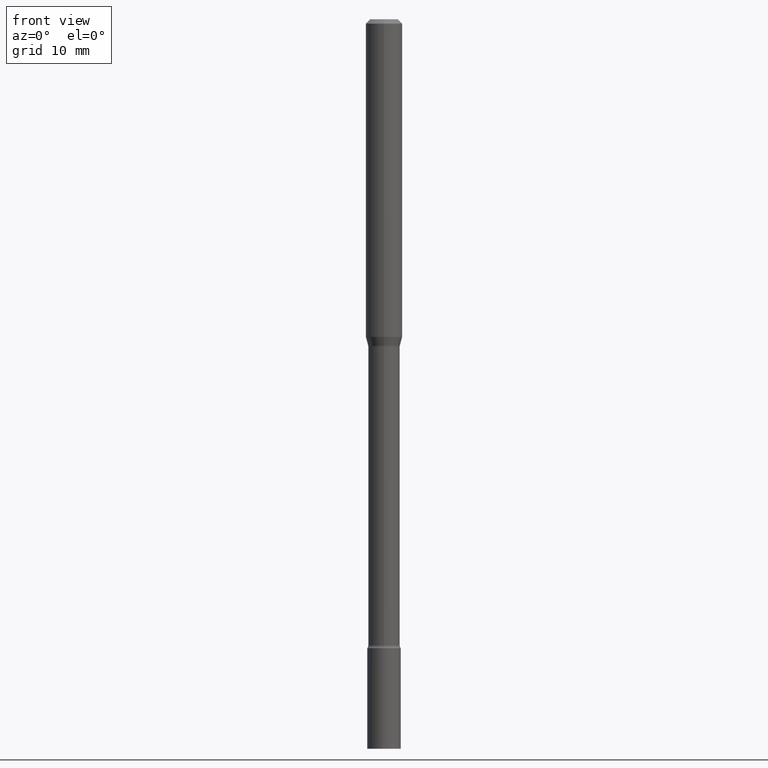
[diagram: clean part render]
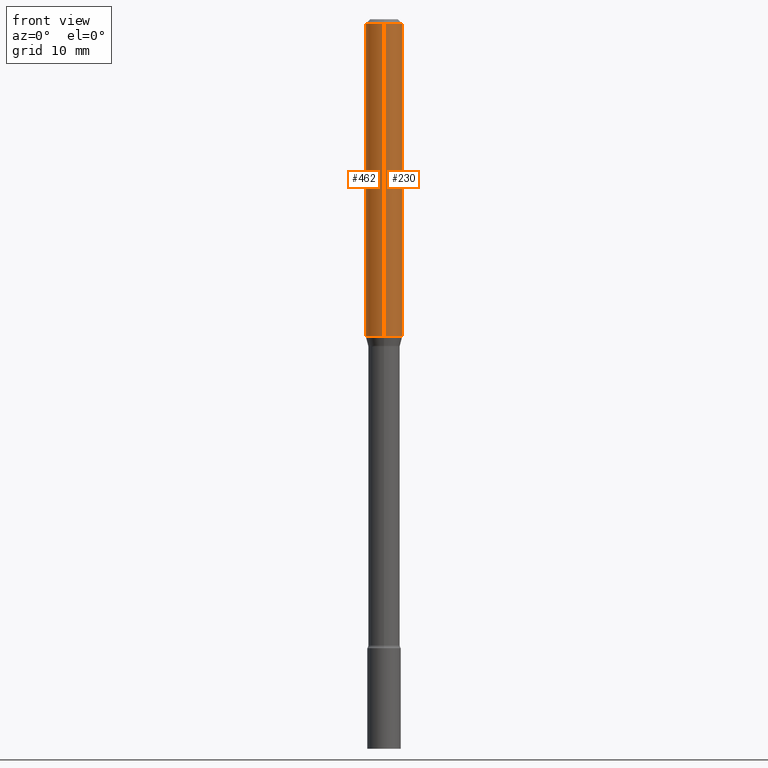
[diagram: same view with one multi-face feature highlighted, each face labeled with its STEP entity id]
A machine part, front view. The highlighted faces form ONE feature: a constant-radius fillet chain: 2 tangent blend faces with common blend radius 1.5875 mm. The faces share edges in the B-rep.
Their STEP definitions:
[1] entity #230 (Cylinder):
#4 = ORIENTED_EDGE ( 'NONE', *, *, #278, .F. ) ;
#22 = CARTESIAN_POINT ( 'NONE',  ( 4.440892098500625669E-16, 0.06250000000000000000, -2.182204508163460437E-16 ) ) ;
#43 = VECTOR ( 'NONE', #266, 39.37007874015748143 ) ;
#51 = VECTOR ( 'NONE', #198, 39.37007874015748143 ) ;
#66 = AXIS2_PLACEMENT_3D ( 'NONE', #467, #179, #302 ) ;
#67 = CARTESIAN_POINT ( 'NONE',  ( -4.364351673553912750E-16, -0.06250000000000005551, -0.01499999999999981209 ) ) ;
#77 = VERTEX_POINT ( 'NONE', #67 ) ;
#87 = CARTESIAN_POINT ( 'NONE',  ( 3.668155158584478023E-31, -5.237290819592315723E-17, -0.01500000000000003067 ) ) ;
#119 = CARTESIAN_POINT ( 'NONE',  ( 4.440892098500893388E-16, 0.06249999999999993755, -0.01500000000000024751 ) ) ;
#124 = DIRECTION ( 'NONE',  ( -6.982962677686265922E-15, -1.000000000000000000, 3.483106191921935554E-15 ) ) ;
#128 = EDGE_CURVE ( 'NONE', #399, #427, #134, .T. ) ;
#132 = CYLINDRICAL_SURFACE ( 'NONE', #66, 0.06250000000000000000 ) ;
#134 = LINE ( 'NONE', #22, #43 ) ;
#144 = AXIS2_PLACEMENT_3D ( 'NONE', #157, #358, #488 ) ;
#157 = CARTESIAN_POINT ( 'NONE',  ( 2.661770308399798169E-29, -3.800402272357863014E-15, -1.088464170676043397 ) ) ;
#173 = EDGE_CURVE ( 'NONE', #77, #427, #187, .T. ) ;
#179 = DIRECTION ( 'NONE',  ( -2.445436772389647239E-29, 3.491527213061536699E-15, 1.000000000000000000 ) ) ;
#187 = CIRCLE ( 'NONE', #458, 0.06250000000000000000 ) ;
#198 = DIRECTION ( 'NONE',  ( -2.445436772389647239E-29, 3.491527213061536699E-15, 1.000000000000000000 ) ) ;
#229 = CARTESIAN_POINT ( 'NONE',  ( 4.440892098500890430E-16, 0.06249999999999618361, -1.088464170676043841 ) ) ;
#230 = ADVANCED_FACE ( 'NONE', ( #508 ), #132, .T. ) ;
#244 = DIRECTION ( 'NONE',  ( -2.445436772389647239E-29, 3.491527213061536699E-15, 1.000000000000000000 ) ) ;
#266 = DIRECTION ( 'NONE',  ( -2.445436772389647239E-29, 3.491527213061536699E-15, 1.000000000000000000 ) ) ;
#278 = EDGE_CURVE ( 'NONE', #320, #77, #495, .T. ) ;
#287 = EDGE_LOOP ( 'NONE', ( #464, #316, #365, #4 ) ) ;
#302 = DIRECTION ( 'NONE',  ( -6.982962677686265922E-15, -1.000000000000000000, 3.491527213061536699E-15 ) ) ;
#316 = ORIENTED_EDGE ( 'NONE', *, *, #128, .T. ) ;
#320 = VERTEX_POINT ( 'NONE', #514 ) ;
#347 = EDGE_CURVE ( 'NONE', #320, #399, #373, .T. ) ;
#358 = DIRECTION ( 'NONE',  ( -2.445436772389647239E-29, 3.491527213061536699E-15, 1.000000000000000000 ) ) ;
#365 = ORIENTED_EDGE ( 'NONE', *, *, #173, .F. ) ;
#367 = CARTESIAN_POINT ( 'NONE',  ( -4.364351673553916201E-16, -0.06250000000000000000, 2.182204508163460437E-16 ) ) ;
#373 = CIRCLE ( 'NONE', #144, 0.06250000000000000000 ) ;
#399 = VERTEX_POINT ( 'NONE', #229 ) ;
#427 = VERTEX_POINT ( 'NONE', #119 ) ;
#458 = AXIS2_PLACEMENT_3D ( 'NONE', #87, #244, #124 ) ;
#464 = ORIENTED_EDGE ( 'NONE', *, *, #347, .T. ) ;
#467 = CARTESIAN_POINT ( 'NONE',  ( 0.000000000000000000, 0.000000000000000000, 0.000000000000000000 ) ) ;
#488 = DIRECTION ( 'NONE',  ( -6.982962677686265922E-15, -1.000000000000000000, 4.370956789862821150E-15 ) ) ;
#495 = LINE ( 'NONE', #367, #51 ) ;
#508 = FACE_OUTER_BOUND ( 'NONE', #287, .T. ) ;
#514 = CARTESIAN_POINT ( 'NONE',  ( -4.364351673553650454E-16, -0.06250000000000381639, -1.088464170676043175 ) ) ;
[2] entity #462 (Cylinder):
#8 = DIRECTION ( 'NONE',  ( -2.445436772389647239E-29, 3.491527213061536699E-15, 1.000000000000000000 ) ) ;
#22 = CARTESIAN_POINT ( 'NONE',  ( 4.440892098500625669E-16, 0.06250000000000000000, -2.182204508163460437E-16 ) ) ;
#32 = CIRCLE ( 'NONE', #465, 0.06250000000000000000 ) ;
#43 = VECTOR ( 'NONE', #266, 39.37007874015748143 ) ;
#51 = VECTOR ( 'NONE', #198, 39.37007874015748143 ) ;
#57 = CYLINDRICAL_SURFACE ( 'NONE', #234, 0.06250000000000000000 ) ;
#67 = CARTESIAN_POINT ( 'NONE',  ( -4.364351673553912750E-16, -0.06250000000000005551, -0.01499999999999981209 ) ) ;
#75 = EDGE_CURVE ( 'NONE', #427, #77, #281, .T. ) ;
#77 = VERTEX_POINT ( 'NONE', #67 ) ;
#104 = DIRECTION ( 'NONE',  ( -6.982962677686265922E-15, -1.000000000000000000, 3.491527213061536699E-15 ) ) ;
#119 = CARTESIAN_POINT ( 'NONE',  ( 4.440892098500893388E-16, 0.06249999999999993755, -0.01500000000000024751 ) ) ;
#128 = EDGE_CURVE ( 'NONE', #399, #427, #134, .T. ) ;
#134 = LINE ( 'NONE', #22, #43 ) ;
#176 = DIRECTION ( 'NONE',  ( -2.445436772389647239E-29, 3.491527213061536699E-15, 1.000000000000000000 ) ) ;
#198 = DIRECTION ( 'NONE',  ( -2.445436772389647239E-29, 3.491527213061536699E-15, 1.000000000000000000 ) ) ;
#204 = ORIENTED_EDGE ( 'NONE', *, *, #75, .F. ) ;
#228 = AXIS2_PLACEMENT_3D ( 'NONE', #271, #273, #431 ) ;
#229 = CARTESIAN_POINT ( 'NONE',  ( 4.440892098500890430E-16, 0.06249999999999618361, -1.088464170676043841 ) ) ;
#234 = AXIS2_PLACEMENT_3D ( 'NONE', #335, #176, #104 ) ;
#238 = CARTESIAN_POINT ( 'NONE',  ( 2.661770308399798169E-29, -3.800402272357863014E-15, -1.088464170676043397 ) ) ;
#253 = DIRECTION ( 'NONE',  ( -6.982962677686265922E-15, -1.000000000000000000, 4.370956789862821150E-15 ) ) ;
#266 = DIRECTION ( 'NONE',  ( -2.445436772389647239E-29, 3.491527213061536699E-15, 1.000000000000000000 ) ) ;
#271 = CARTESIAN_POINT ( 'NONE',  ( 3.668155158584478023E-31, -5.237290819592315723E-17, -0.01500000000000003067 ) ) ;
#273 = DIRECTION ( 'NONE',  ( -2.445436772389647239E-29, 3.491527213061536699E-15, 1.000000000000000000 ) ) ;
#278 = EDGE_CURVE ( 'NONE', #320, #77, #495, .T. ) ;
#281 = CIRCLE ( 'NONE', #228, 0.06250000000000000000 ) ;
#312 = EDGE_LOOP ( 'NONE', ( #396, #337, #361, #204 ) ) ;
#320 = VERTEX_POINT ( 'NONE', #514 ) ;
#335 = CARTESIAN_POINT ( 'NONE',  ( 0.000000000000000000, 0.000000000000000000, 0.000000000000000000 ) ) ;
#337 = ORIENTED_EDGE ( 'NONE', *, *, #480, .T. ) ;
#361 = ORIENTED_EDGE ( 'NONE', *, *, #278, .T. ) ;
#367 = CARTESIAN_POINT ( 'NONE',  ( -4.364351673553916201E-16, -0.06250000000000000000, 2.182204508163460437E-16 ) ) ;
#396 = ORIENTED_EDGE ( 'NONE', *, *, #128, .F. ) ;
#399 = VERTEX_POINT ( 'NONE', #229 ) ;
#427 = VERTEX_POINT ( 'NONE', #119 ) ;
#431 = DIRECTION ( 'NONE',  ( -6.982962677686265922E-15, -1.000000000000000000, 3.483106191921935554E-15 ) ) ;
#450 = FACE_OUTER_BOUND ( 'NONE', #312, .T. ) ;
#462 = ADVANCED_FACE ( 'NONE', ( #450 ), #57, .T. ) ;
#465 = AXIS2_PLACEMENT_3D ( 'NONE', #238, #8, #253 ) ;
#480 = EDGE_CURVE ( 'NONE', #399, #320, #32, .T. ) ;
#495 = LINE ( 'NONE', #367, #51 ) ;
#514 = CARTESIAN_POINT ( 'NONE',  ( -4.364351673553650454E-16, -0.06250000000000381639, -1.088464170676043175 ) ) ;